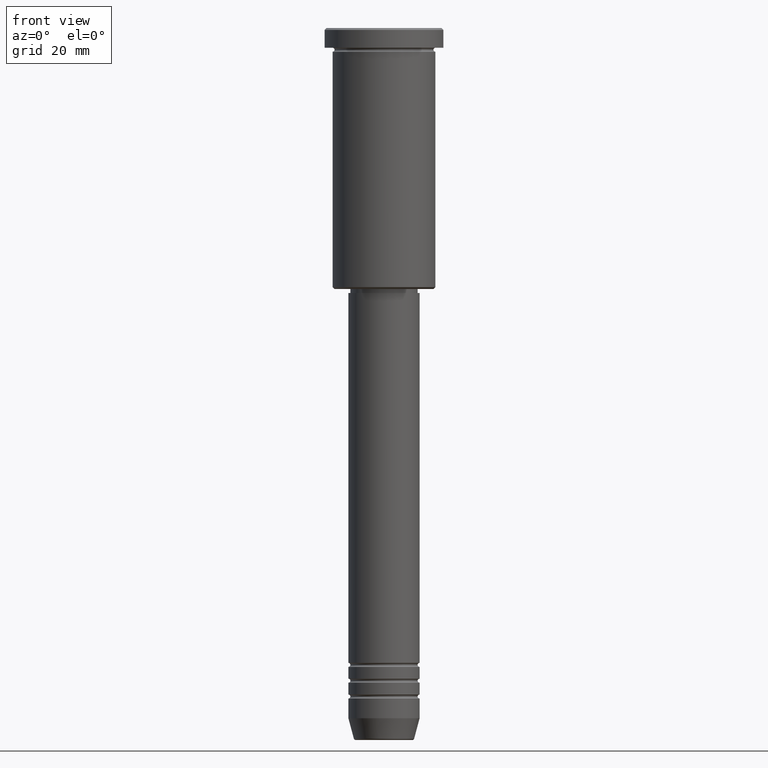
[diagram: clean part render]
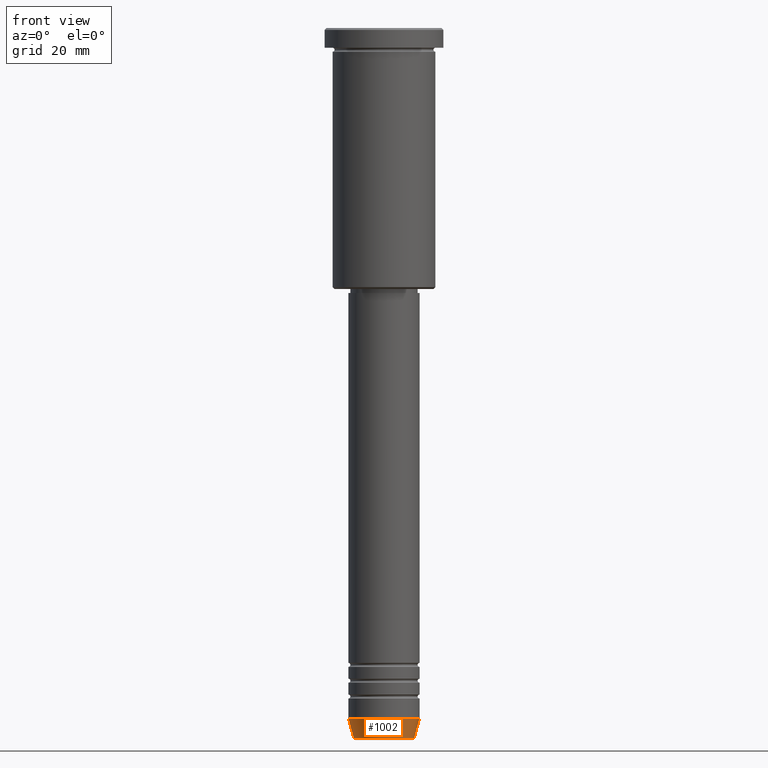
[diagram: same view with one face highlighted and labeled with its STEP entity id]
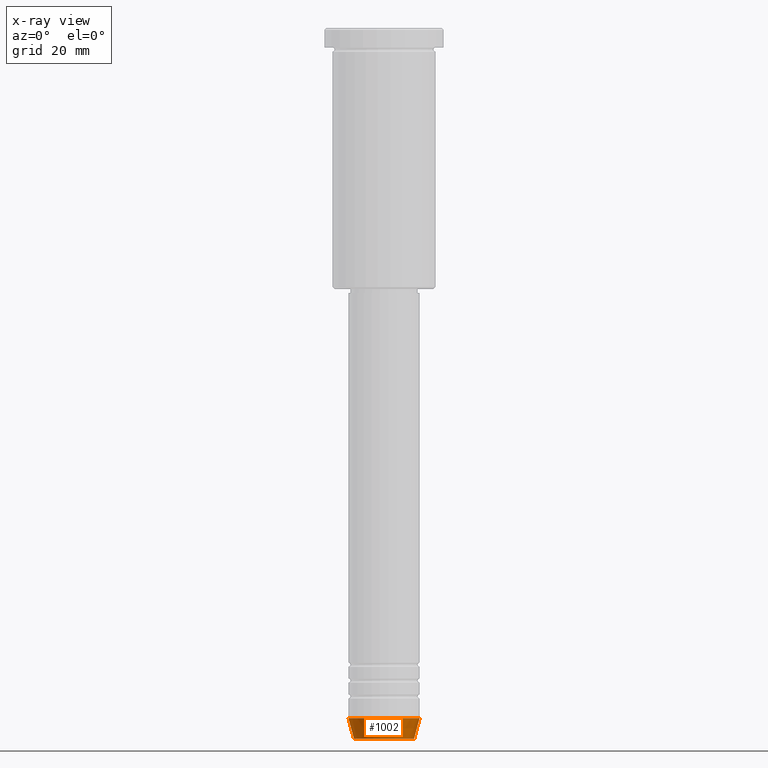
[diagram: x-ray of the same camera — body ghosted, the highlighted face saturated]
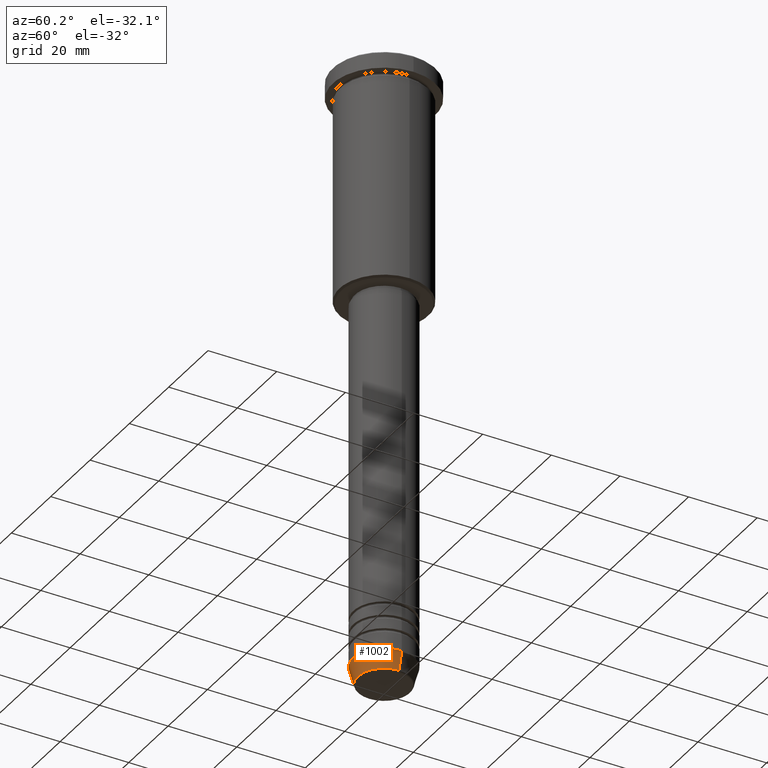
[diagram: same view with one face highlighted and labeled with its STEP entity id]
A machine part, front view. The second image highlights one B-rep face of the part: STEP entity #1002.
The next image is the same camera in x-ray: the body ghosted, the highlighted face saturated — about 0% of this face is hidden behind the body in this view.
A second angle (auxiliary view) of the same face is appended — the face is thin or edge-on in the first view.
In plain terms, the highlighted conical surface has half-angle 15 deg.
Its self-contained STEP definition (entity closure, byte-faithful):
#4 = AXIS2_PLACEMENT_3D ( 'NONE', #816, #632, #361 ) ;
#13 = ORIENTED_EDGE ( 'NONE', *, *, #514, .F. ) ;
#31 = EDGE_LOOP ( 'NONE', ( #13, #977, #942, #254 ) ) ;
#81 = DIRECTION ( 'NONE',  ( -0.000000000000000000, -0.000000000000000000, 1.000000000000000000 ) ) ;
#87 = DIRECTION ( 'NONE',  ( 0.2588190451025212391, 0.000000000000000000, 0.9659258262890680902 ) ) ;
#88 = CARTESIAN_POINT ( 'NONE',  ( 7.625578860783882362, 0.000000000000000000, -179.6294095225512422 ) ) ;
#152 = VECTOR ( 'NONE', #888, 1000.000000000000114 ) ;
#218 = VERTEX_POINT ( 'NONE', #351 ) ;
#254 = ORIENTED_EDGE ( 'NONE', *, *, #1134, .F. ) ;
#351 = CARTESIAN_POINT ( 'NONE',  ( 9.000000000000001776, 0.000000000000000000, -174.5000000000000284 ) ) ;
#361 = DIRECTION ( 'NONE',  ( 1.000000000000000000, 0.000000000000000000, 0.000000000000000000 ) ) ;
#470 = CONICAL_SURFACE ( 'NONE', #606, 9.000000000000001776, 0.2617993877991499629 ) ;
#498 = DIRECTION ( 'NONE',  ( 1.000000000000000000, 0.000000000000000000, 0.000000000000000000 ) ) ;
#508 = VERTEX_POINT ( 'NONE', #877 ) ;
#514 = EDGE_CURVE ( 'NONE', #508, #752, #786, .T. ) ;
#518 = VERTEX_POINT ( 'NONE', #88 ) ;
#529 = CARTESIAN_POINT ( 'NONE',  ( 0.000000000000000000, 0.000000000000000000, -179.6294095225512422 ) ) ;
#606 = AXIS2_PLACEMENT_3D ( 'NONE', #618, #81, #498 ) ;
#611 = FACE_OUTER_BOUND ( 'NONE', #31, .T. ) ;
#618 = CARTESIAN_POINT ( 'NONE',  ( 0.000000000000000000, 0.000000000000000000, -174.5000000000000284 ) ) ;
#632 = DIRECTION ( 'NONE',  ( -0.000000000000000000, -0.000000000000000000, 1.000000000000000000 ) ) ;
#645 = VECTOR ( 'NONE', #87, 1000.000000000000114 ) ;
#752 = VERTEX_POINT ( 'NONE', #1029 ) ;
#780 = DIRECTION ( 'NONE',  ( -0.000000000000000000, -0.000000000000000000, 1.000000000000000000 ) ) ;
#786 = LINE ( 'NONE', #883, #152 ) ;
#816 = CARTESIAN_POINT ( 'NONE',  ( 0.000000000000000000, 0.000000000000000000, -174.5000000000000284 ) ) ;
#831 = AXIS2_PLACEMENT_3D ( 'NONE', #529, #780, #1166 ) ;
#868 = CARTESIAN_POINT ( 'NONE',  ( 9.000000000000001776, 0.000000000000000000, -174.5000000000000284 ) ) ;
#877 = CARTESIAN_POINT ( 'NONE',  ( -7.625578860783882362, 1.018023096791544096E-15, -179.6294095225512422 ) ) ;
#881 = LINE ( 'NONE', #868, #645 ) ;
#883 = CARTESIAN_POINT ( 'NONE',  ( -9.000000000000001776, 1.102182119232617911E-15, -174.5000000000000284 ) ) ;
#888 = DIRECTION ( 'NONE',  ( -0.2588190451025212391, 3.169619151431771721E-17, 0.9659258262890680902 ) ) ;
#914 = EDGE_CURVE ( 'NONE', #518, #218, #881, .T. ) ;
#939 = EDGE_CURVE ( 'NONE', #508, #518, #1111, .T. ) ;
#942 = ORIENTED_EDGE ( 'NONE', *, *, #914, .T. ) ;
#977 = ORIENTED_EDGE ( 'NONE', *, *, #939, .T. ) ;
#1002 = ADVANCED_FACE ( 'NONE', ( #611 ), #470, .T. ) ;
#1010 = CIRCLE ( 'NONE', #4, 9.000000000000001776 ) ;
#1029 = CARTESIAN_POINT ( 'NONE',  ( -9.000000000000001776, 1.102182119232617911E-15, -174.5000000000000284 ) ) ;
#1111 = CIRCLE ( 'NONE', #831, 7.625578860783882362 ) ;
#1134 = EDGE_CURVE ( 'NONE', #752, #218, #1010, .T. ) ;
#1166 = DIRECTION ( 'NONE',  ( 1.000000000000000000, 0.000000000000000000, 0.000000000000000000 ) ) ;